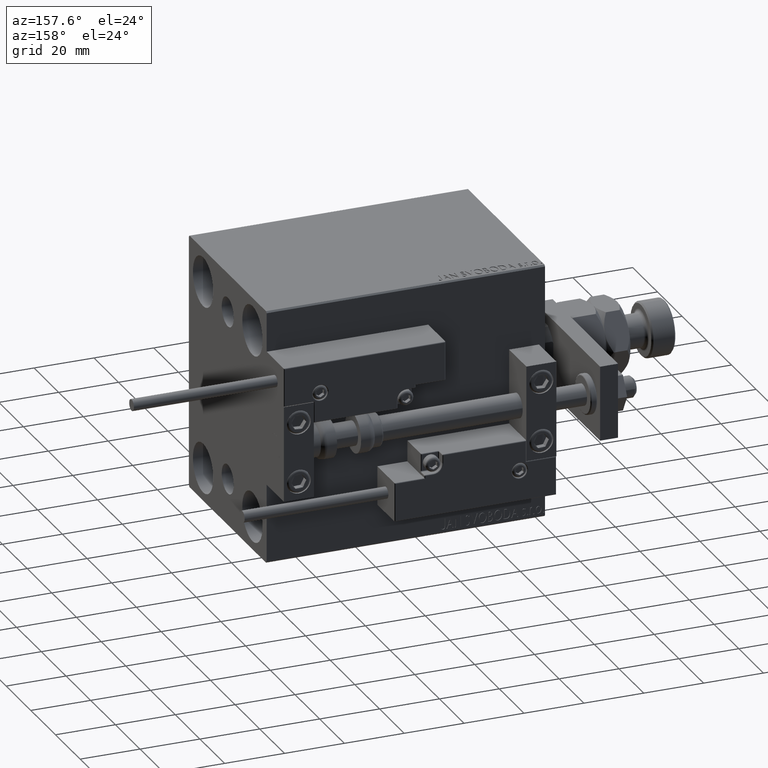
[diagram: clean part render]
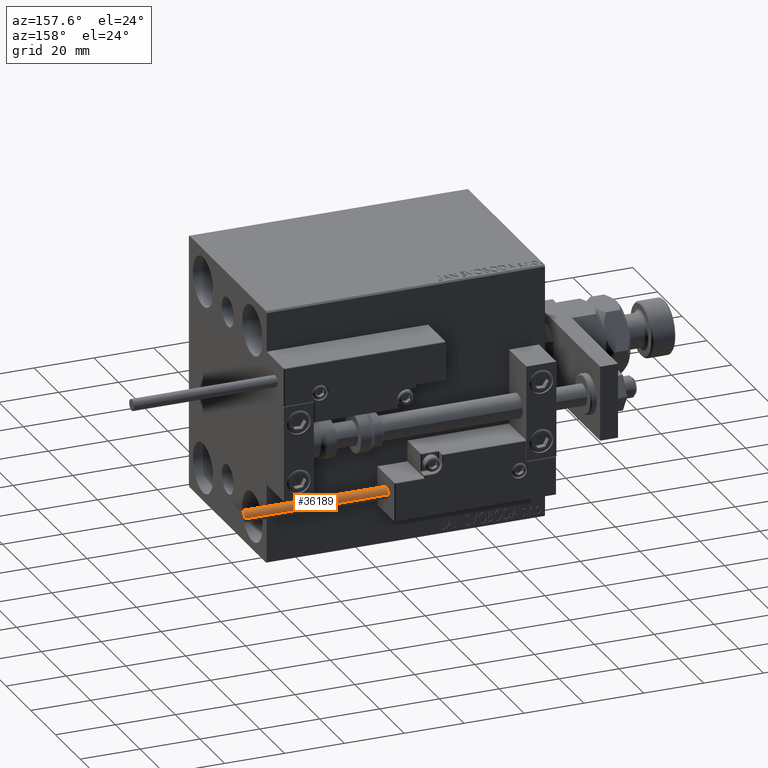
[diagram: same view with one face highlighted and labeled with its STEP entity id]
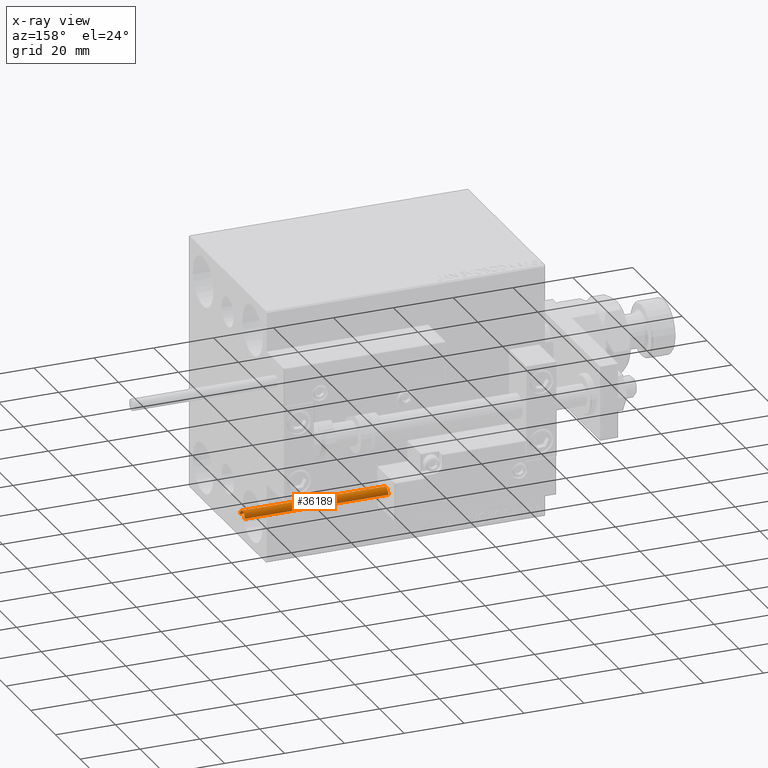
[diagram: x-ray of the same camera — body ghosted, the highlighted face saturated]
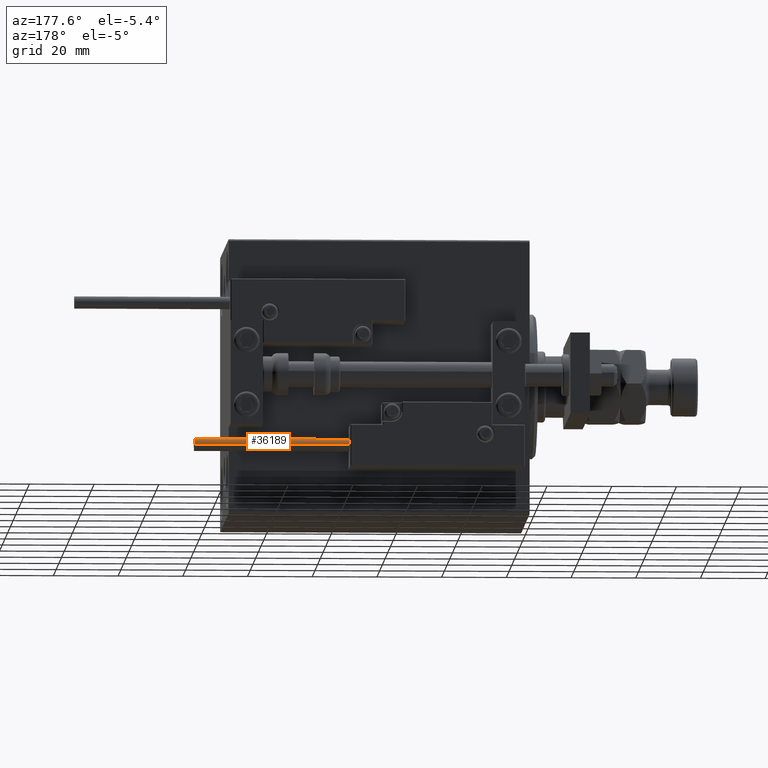
[diagram: same view with one face highlighted and labeled with its STEP entity id]
A machine part, auxiliary view. The second image highlights one B-rep face of the part: STEP entity #36189.
The next image is the same camera in x-ray: the body ghosted, the highlighted face saturated — about 0% of this face is hidden behind the body in this view.
A second angle (auxiliary view) of the same face is appended — the face is thin or edge-on in the first view.
In plain terms, the highlighted cylindrical surface (edge-blend (fillet) strip) has radius 1.9 mm, axis along (-1, 0, 0).
Its self-contained STEP definition (entity closure, byte-faithful):
#1799 = CARTESIAN_POINT ( 'NONE',  ( 0.000000000000000000, 0.000000000000000000, 48.00000000000000000 ) ) ;
#4677 = ORIENTED_EDGE ( 'NONE', *, *, #7349, .T. ) ;
#5473 = DIRECTION ( 'NONE',  ( -0.000000000000000000, -0.000000000000000000, -1.000000000000000000 ) ) ;
#6456 = DIRECTION ( 'NONE',  ( 0.000000000000000000, 0.000000000000000000, 1.000000000000000000 ) ) ;
#6782 = AXIS2_PLACEMENT_3D ( 'NONE', #28918, #12973, #21350 ) ;
#6829 = VECTOR ( 'NONE', #5473, 1000.000000000000000 ) ;
#7020 = DIRECTION ( 'NONE',  ( -0.000000000000000000, -0.000000000000000000, -1.000000000000000000 ) ) ;
#7349 = EDGE_CURVE ( 'NONE', #36070, #45270, #35660, .T. ) ;
#7790 = VECTOR ( 'NONE', #7020, 1000.000000000000000 ) ;
#9238 = ORIENTED_EDGE ( 'NONE', *, *, #38744, .F. ) ;
#12973 = DIRECTION ( 'NONE',  ( 0.000000000000000000, 0.000000000000000000, 1.000000000000000000 ) ) ;
#20417 = CARTESIAN_POINT ( 'NONE',  ( 1.899999999999999467, 2.326828918379970872E-16, 0.000000000000000000 ) ) ;
#21350 = DIRECTION ( 'NONE',  ( 1.000000000000000000, 0.000000000000000000, 0.000000000000000000 ) ) ;
#22238 = EDGE_CURVE ( 'NONE', #44399, #36070, #49161, .T. ) ;
#24270 = CARTESIAN_POINT ( 'NONE',  ( 0.000000000000000000, 0.000000000000000000, 0.000000000000000000 ) ) ;
#25074 = ORIENTED_EDGE ( 'NONE', *, *, #22238, .T. ) ;
#28546 = AXIS2_PLACEMENT_3D ( 'NONE', #1799, #49684, #38419 ) ;
#28918 = CARTESIAN_POINT ( 'NONE',  ( 0.000000000000000000, 0.000000000000000000, 48.00000000000000000 ) ) ;
#30383 = EDGE_CURVE ( 'NONE', #44399, #45597, #51028, .T. ) ;
#33937 = DIRECTION ( 'NONE',  ( 1.000000000000000000, 0.000000000000000000, 0.000000000000000000 ) ) ;
#34967 = CARTESIAN_POINT ( 'NONE',  ( -1.899999999999999467, 0.000000000000000000, 0.000000000000000000 ) ) ;
#35660 = CIRCLE ( 'NONE', #40654, 1.899999999999999467 ) ;
#35963 = ORIENTED_EDGE ( 'NONE', *, *, #30383, .F. ) ;
#36070 = VERTEX_POINT ( 'NONE', #20417 ) ;
#36189 = ADVANCED_FACE ( 'NONE', ( #46534 ), #42346, .T. ) ;
#38419 = DIRECTION ( 'NONE',  ( -1.000000000000000000, 0.000000000000000000, 0.000000000000000000 ) ) ;
#38660 = LINE ( 'NONE', #46268, #7790 ) ;
#38744 = EDGE_CURVE ( 'NONE', #45597, #45270, #38660, .T. ) ;
#40654 = AXIS2_PLACEMENT_3D ( 'NONE', #24270, #6456, #33937 ) ;
#41311 = CARTESIAN_POINT ( 'NONE',  ( 1.899999999999999467, 2.326828918379970872E-16, 48.00000000000000000 ) ) ;
#42346 = CYLINDRICAL_SURFACE ( 'NONE', #28546, 1.899999999999999467 ) ;
#44399 = VERTEX_POINT ( 'NONE', #48487 ) ;
#45270 = VERTEX_POINT ( 'NONE', #34967 ) ;
#45597 = VERTEX_POINT ( 'NONE', #46682 ) ;
#46268 = CARTESIAN_POINT ( 'NONE',  ( -1.899999999999999467, 0.000000000000000000, 48.00000000000000000 ) ) ;
#46534 = FACE_OUTER_BOUND ( 'NONE', #49637, .T. ) ;
#46682 = CARTESIAN_POINT ( 'NONE',  ( -1.899999999999999467, 0.000000000000000000, 48.00000000000000000 ) ) ;
#48487 = CARTESIAN_POINT ( 'NONE',  ( 1.899999999999999467, 2.326828918379970872E-16, 48.00000000000000000 ) ) ;
#49161 = LINE ( 'NONE', #41311, #6829 ) ;
#49637 = EDGE_LOOP ( 'NONE', ( #35963, #25074, #4677, #9238 ) ) ;
#49684 = DIRECTION ( 'NONE',  ( -0.000000000000000000, -0.000000000000000000, -1.000000000000000000 ) ) ;
#51028 = CIRCLE ( 'NONE', #6782, 1.899999999999999467 ) ;